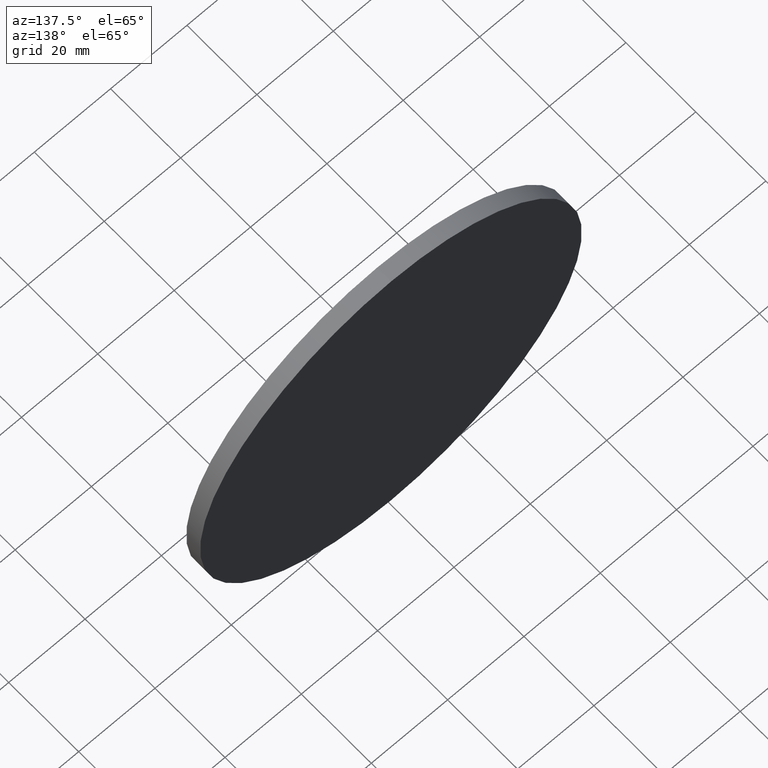
[diagram: clean part render]
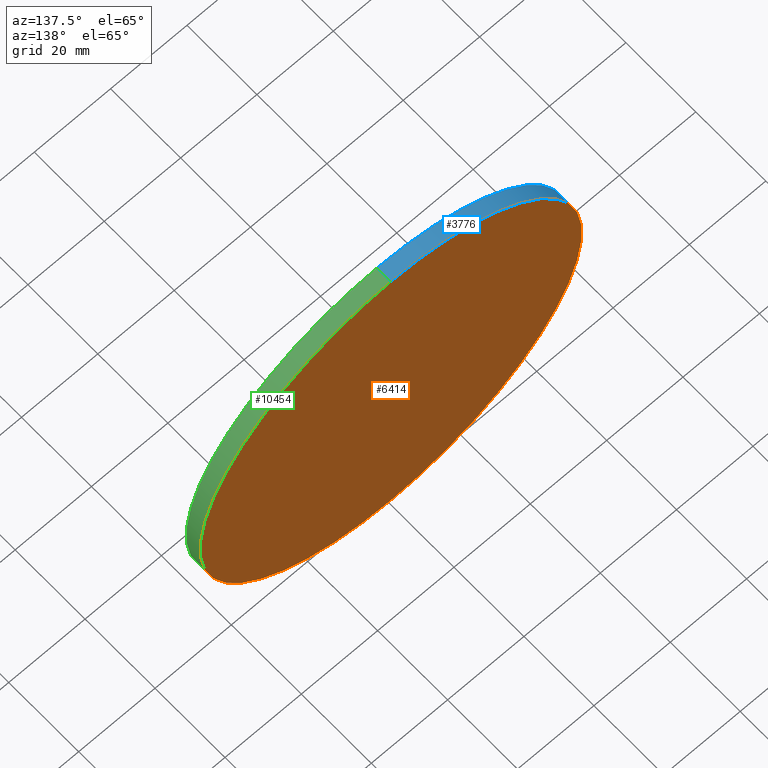
[diagram: same view with three faces highlighted in distinct colors, each labeled with its STEP entity id]
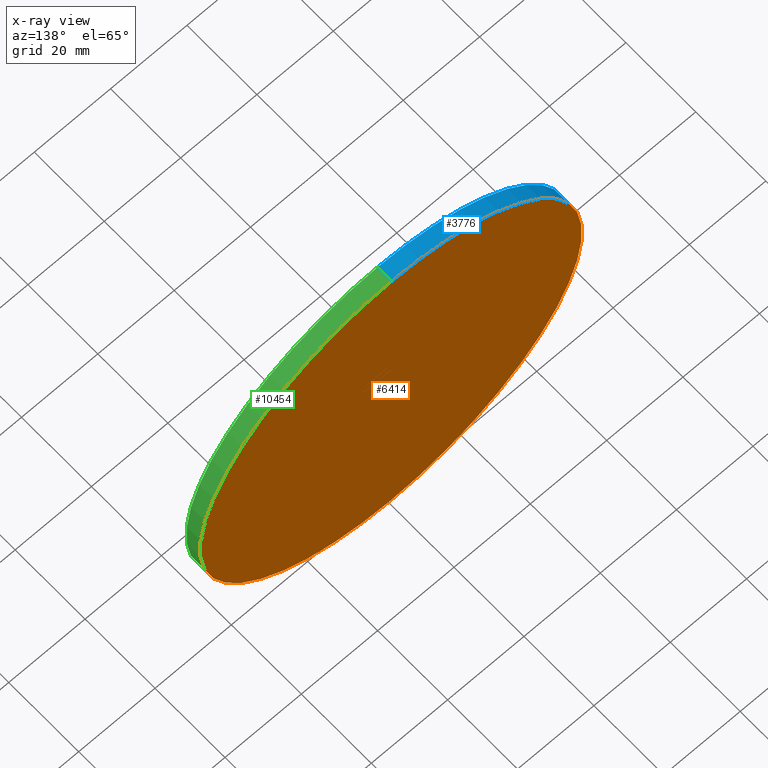
[diagram: x-ray of the same camera — body ghosted, the three highlighted faces saturated]
A machine part, auxiliary view with three faces highlighted in distinct colors.
The next image is the same camera in x-ray (body ghosted, the three faces saturated) — at least one of them is partly hidden behind the body in this view.
Their STEP definitions:

[orange] entity #6414 — the highlighted planar face has unit normal (0, 1, 0).
#1067 = FACE_OUTER_BOUND ( 'NONE', #5942, .T. ) ;
#2139 = CIRCLE ( 'NONE', #8306, 50.00000000000000000 ) ;
#2154 = DIRECTION ( 'NONE',  ( 0.000000000000000000, 0.000000000000000000, 1.000000000000000000 ) ) ;
#3016 = DIRECTION ( 'NONE',  ( 0.000000000000000000, -0.000000000000000000, 1.000000000000000000 ) ) ;
#3067 = CARTESIAN_POINT ( 'NONE',  ( 6.123233995736766085E-15, 2.000000000000000000, 50.00000000000000000 ) ) ;
#3873 = VERTEX_POINT ( 'NONE', #3067 ) ;
#4098 = PLANE ( 'NONE',  #13696 ) ;
#4244 = DIRECTION ( 'NONE',  ( 0.000000000000000000, 1.000000000000000000, 0.000000000000000000 ) ) ;
#4251 = DIRECTION ( 'NONE',  ( 0.000000000000000000, 1.000000000000000000, 0.000000000000000000 ) ) ;
#5381 = EDGE_CURVE ( 'NONE', #3873, #12148, #2139, .T. ) ;
#5942 = EDGE_LOOP ( 'NONE', ( #8936, #13607 ) ) ;
#6049 = CARTESIAN_POINT ( 'NONE',  ( 0.000000000000000000, 2.000000000000000000, -50.00000000000000000 ) ) ;
#6414 = ADVANCED_FACE ( 'NONE', ( #1067 ), #4098, .T. ) ;
#7166 = CIRCLE ( 'NONE', #13340, 50.00000000000000000 ) ;
#7474 = CARTESIAN_POINT ( 'NONE',  ( 0.000000000000000000, 2.000000000000000000, 0.000000000000000000 ) ) ;
#7672 = DIRECTION ( 'NONE',  ( 0.000000000000000000, 0.000000000000000000, 1.000000000000000000 ) ) ;
#8306 = AXIS2_PLACEMENT_3D ( 'NONE', #11395, #9537, #2154 ) ;
#8936 = ORIENTED_EDGE ( 'NONE', *, *, #9417, .T. ) ;
#9417 = EDGE_CURVE ( 'NONE', #12148, #3873, #7166, .T. ) ;
#9537 = DIRECTION ( 'NONE',  ( 0.000000000000000000, 1.000000000000000000, 0.000000000000000000 ) ) ;
#11395 = CARTESIAN_POINT ( 'NONE',  ( 0.000000000000000000, 2.000000000000000000, 0.000000000000000000 ) ) ;
#12148 = VERTEX_POINT ( 'NONE', #6049 ) ;
#13261 = CARTESIAN_POINT ( 'NONE',  ( 0.000000000000000000, 2.000000000000000000, 0.000000000000000000 ) ) ;
#13340 = AXIS2_PLACEMENT_3D ( 'NONE', #13261, #4251, #7672 ) ;
#13607 = ORIENTED_EDGE ( 'NONE', *, *, #5381, .T. ) ;
#13696 = AXIS2_PLACEMENT_3D ( 'NONE', #7474, #4244, #3016 ) ;

[blue] entity #3776 — the highlighted cylindrical surface (partial cylindrical patch) has radius 50 mm, axis along (-0, -1, -0).
#142 = VERTEX_POINT ( 'NONE', #13598 ) ;
#239 = EDGE_CURVE ( 'NONE', #12148, #142, #10391, .T. ) ;
#340 = VECTOR ( 'NONE', #3011, 1000.000000000000000 ) ;
#554 = FACE_OUTER_BOUND ( 'NONE', #10966, .T. ) ;
#767 = ORIENTED_EDGE ( 'NONE', *, *, #9417, .F. ) ;
#1225 = CARTESIAN_POINT ( 'NONE',  ( 0.000000000000000000, 2.000000000000000000, 0.000000000000000000 ) ) ;
#1738 = CARTESIAN_POINT ( 'NONE',  ( 0.000000000000000000, -2.000000000000000000, 0.000000000000000000 ) ) ;
#3011 = DIRECTION ( 'NONE',  ( -0.000000000000000000, -1.000000000000000000, -0.000000000000000000 ) ) ;
#3067 = CARTESIAN_POINT ( 'NONE',  ( 6.123233995736766085E-15, 2.000000000000000000, 50.00000000000000000 ) ) ;
#3286 = EDGE_CURVE ( 'NONE', #142, #7140, #11752, .T. ) ;
#3463 = DIRECTION ( 'NONE',  ( 0.000000000000000000, 0.000000000000000000, -1.000000000000000000 ) ) ;
#3568 = DIRECTION ( 'NONE',  ( -0.000000000000000000, -1.000000000000000000, -0.000000000000000000 ) ) ;
#3776 = ADVANCED_FACE ( 'NONE', ( #554 ), #12261, .T. ) ;
#3873 = VERTEX_POINT ( 'NONE', #3067 ) ;
#4251 = DIRECTION ( 'NONE',  ( 0.000000000000000000, 1.000000000000000000, 0.000000000000000000 ) ) ;
#4536 = LINE ( 'NONE', #9714, #340 ) ;
#4642 = ORIENTED_EDGE ( 'NONE', *, *, #239, .T. ) ;
#6049 = CARTESIAN_POINT ( 'NONE',  ( 0.000000000000000000, 2.000000000000000000, -50.00000000000000000 ) ) ;
#6815 = AXIS2_PLACEMENT_3D ( 'NONE', #1225, #10166, #3463 ) ;
#7140 = VERTEX_POINT ( 'NONE', #9348 ) ;
#7166 = CIRCLE ( 'NONE', #13340, 50.00000000000000000 ) ;
#7672 = DIRECTION ( 'NONE',  ( 0.000000000000000000, 0.000000000000000000, 1.000000000000000000 ) ) ;
#8385 = EDGE_CURVE ( 'NONE', #3873, #7140, #4536, .T. ) ;
#9348 = CARTESIAN_POINT ( 'NONE',  ( 6.123233995736766085E-15, -2.000000000000000000, 50.00000000000000000 ) ) ;
#9361 = DIRECTION ( 'NONE',  ( 0.000000000000000000, 0.000000000000000000, 1.000000000000000000 ) ) ;
#9417 = EDGE_CURVE ( 'NONE', #12148, #3873, #7166, .T. ) ;
#9551 = DIRECTION ( 'NONE',  ( 0.000000000000000000, 1.000000000000000000, 0.000000000000000000 ) ) ;
#9614 = AXIS2_PLACEMENT_3D ( 'NONE', #1738, #9551, #9361 ) ;
#9710 = ORIENTED_EDGE ( 'NONE', *, *, #8385, .F. ) ;
#9714 = CARTESIAN_POINT ( 'NONE',  ( 6.123233995736766085E-15, 2.000000000000000000, 50.00000000000000000 ) ) ;
#10054 = VECTOR ( 'NONE', #3568, 1000.000000000000000 ) ;
#10166 = DIRECTION ( 'NONE',  ( -0.000000000000000000, -1.000000000000000000, -0.000000000000000000 ) ) ;
#10391 = LINE ( 'NONE', #10401, #10054 ) ;
#10401 = CARTESIAN_POINT ( 'NONE',  ( 0.000000000000000000, 2.000000000000000000, -50.00000000000000000 ) ) ;
#10483 = ORIENTED_EDGE ( 'NONE', *, *, #3286, .T. ) ;
#10966 = EDGE_LOOP ( 'NONE', ( #9710, #767, #4642, #10483 ) ) ;
#11752 = CIRCLE ( 'NONE', #9614, 50.00000000000000000 ) ;
#12148 = VERTEX_POINT ( 'NONE', #6049 ) ;
#12261 = CYLINDRICAL_SURFACE ( 'NONE', #6815, 50.00000000000000000 ) ;
#13261 = CARTESIAN_POINT ( 'NONE',  ( 0.000000000000000000, 2.000000000000000000, 0.000000000000000000 ) ) ;
#13340 = AXIS2_PLACEMENT_3D ( 'NONE', #13261, #4251, #7672 ) ;
#13598 = CARTESIAN_POINT ( 'NONE',  ( 0.000000000000000000, -2.000000000000000000, -50.00000000000000000 ) ) ;

[green] entity #10454 — the highlighted cylindrical surface (partial cylindrical patch) has radius 50 mm, axis along (-0, -1, -0).
#142 = VERTEX_POINT ( 'NONE', #13598 ) ;
#239 = EDGE_CURVE ( 'NONE', #12148, #142, #10391, .T. ) ;
#340 = VECTOR ( 'NONE', #3011, 1000.000000000000000 ) ;
#380 = ORIENTED_EDGE ( 'NONE', *, *, #4019, .T. ) ;
#1007 = DIRECTION ( 'NONE',  ( 0.000000000000000000, 1.000000000000000000, 0.000000000000000000 ) ) ;
#2139 = CIRCLE ( 'NONE', #8306, 50.00000000000000000 ) ;
#2154 = DIRECTION ( 'NONE',  ( 0.000000000000000000, 0.000000000000000000, 1.000000000000000000 ) ) ;
#2587 = AXIS2_PLACEMENT_3D ( 'NONE', #14384, #1007, #8835 ) ;
#3011 = DIRECTION ( 'NONE',  ( -0.000000000000000000, -1.000000000000000000, -0.000000000000000000 ) ) ;
#3067 = CARTESIAN_POINT ( 'NONE',  ( 6.123233995736766085E-15, 2.000000000000000000, 50.00000000000000000 ) ) ;
#3568 = DIRECTION ( 'NONE',  ( -0.000000000000000000, -1.000000000000000000, -0.000000000000000000 ) ) ;
#3873 = VERTEX_POINT ( 'NONE', #3067 ) ;
#4019 = EDGE_CURVE ( 'NONE', #7140, #142, #6523, .T. ) ;
#4536 = LINE ( 'NONE', #9714, #340 ) ;
#5381 = EDGE_CURVE ( 'NONE', #3873, #12148, #2139, .T. ) ;
#5743 = CYLINDRICAL_SURFACE ( 'NONE', #9939, 50.00000000000000000 ) ;
#6049 = CARTESIAN_POINT ( 'NONE',  ( 0.000000000000000000, 2.000000000000000000, -50.00000000000000000 ) ) ;
#6275 = EDGE_LOOP ( 'NONE', ( #7809, #8396, #380, #12904 ) ) ;
#6523 = CIRCLE ( 'NONE', #2587, 50.00000000000000000 ) ;
#7140 = VERTEX_POINT ( 'NONE', #9348 ) ;
#7809 = ORIENTED_EDGE ( 'NONE', *, *, #5381, .F. ) ;
#8306 = AXIS2_PLACEMENT_3D ( 'NONE', #11395, #9537, #2154 ) ;
#8385 = EDGE_CURVE ( 'NONE', #3873, #7140, #4536, .T. ) ;
#8396 = ORIENTED_EDGE ( 'NONE', *, *, #8385, .T. ) ;
#8835 = DIRECTION ( 'NONE',  ( 0.000000000000000000, 0.000000000000000000, 1.000000000000000000 ) ) ;
#9348 = CARTESIAN_POINT ( 'NONE',  ( 6.123233995736766085E-15, -2.000000000000000000, 50.00000000000000000 ) ) ;
#9537 = DIRECTION ( 'NONE',  ( 0.000000000000000000, 1.000000000000000000, 0.000000000000000000 ) ) ;
#9714 = CARTESIAN_POINT ( 'NONE',  ( 6.123233995736766085E-15, 2.000000000000000000, 50.00000000000000000 ) ) ;
#9939 = AXIS2_PLACEMENT_3D ( 'NONE', #10444, #13831, #12585 ) ;
#10054 = VECTOR ( 'NONE', #3568, 1000.000000000000000 ) ;
#10391 = LINE ( 'NONE', #10401, #10054 ) ;
#10401 = CARTESIAN_POINT ( 'NONE',  ( 0.000000000000000000, 2.000000000000000000, -50.00000000000000000 ) ) ;
#10444 = CARTESIAN_POINT ( 'NONE',  ( 0.000000000000000000, 2.000000000000000000, 0.000000000000000000 ) ) ;
#10454 = ADVANCED_FACE ( 'NONE', ( #10802 ), #5743, .T. ) ;
#10802 = FACE_OUTER_BOUND ( 'NONE', #6275, .T. ) ;
#11395 = CARTESIAN_POINT ( 'NONE',  ( 0.000000000000000000, 2.000000000000000000, 0.000000000000000000 ) ) ;
#12148 = VERTEX_POINT ( 'NONE', #6049 ) ;
#12585 = DIRECTION ( 'NONE',  ( 0.000000000000000000, 0.000000000000000000, -1.000000000000000000 ) ) ;
#12904 = ORIENTED_EDGE ( 'NONE', *, *, #239, .F. ) ;
#13598 = CARTESIAN_POINT ( 'NONE',  ( 0.000000000000000000, -2.000000000000000000, -50.00000000000000000 ) ) ;
#13831 = DIRECTION ( 'NONE',  ( -0.000000000000000000, -1.000000000000000000, -0.000000000000000000 ) ) ;
#14384 = CARTESIAN_POINT ( 'NONE',  ( 0.000000000000000000, -2.000000000000000000, 0.000000000000000000 ) ) ;